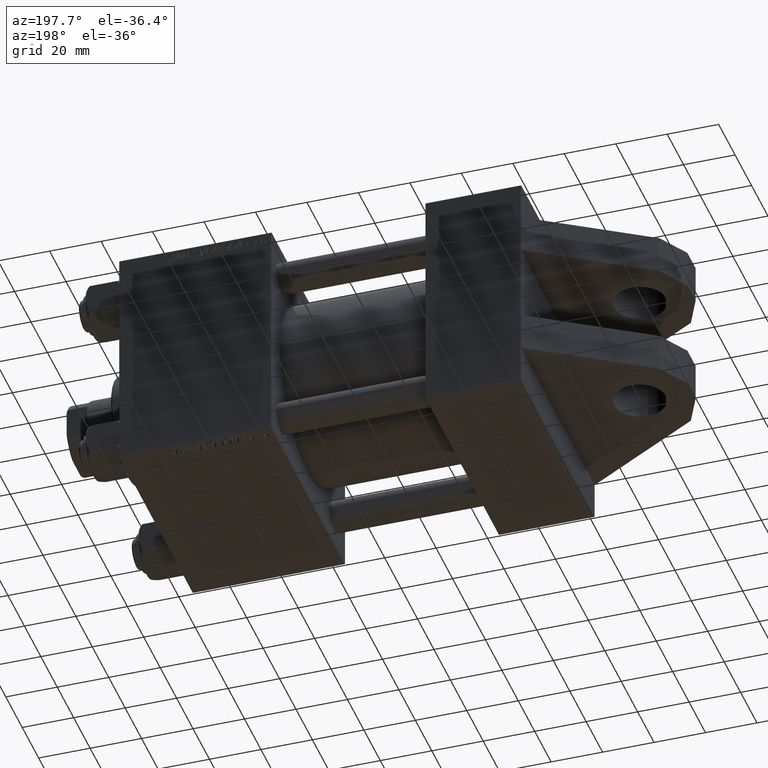
[diagram: clean part render]
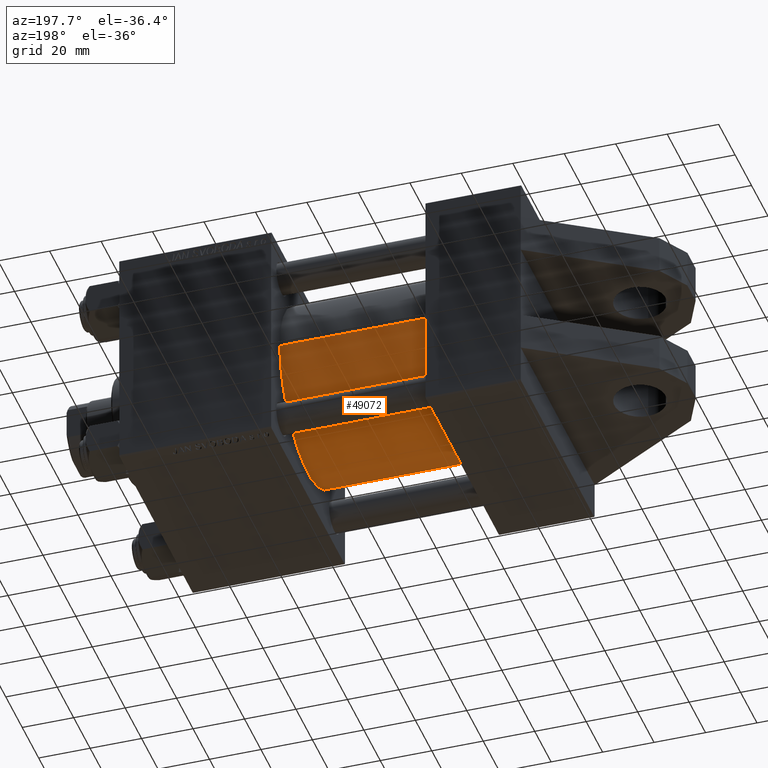
[diagram: same view with one face highlighted and labeled with its STEP entity id]
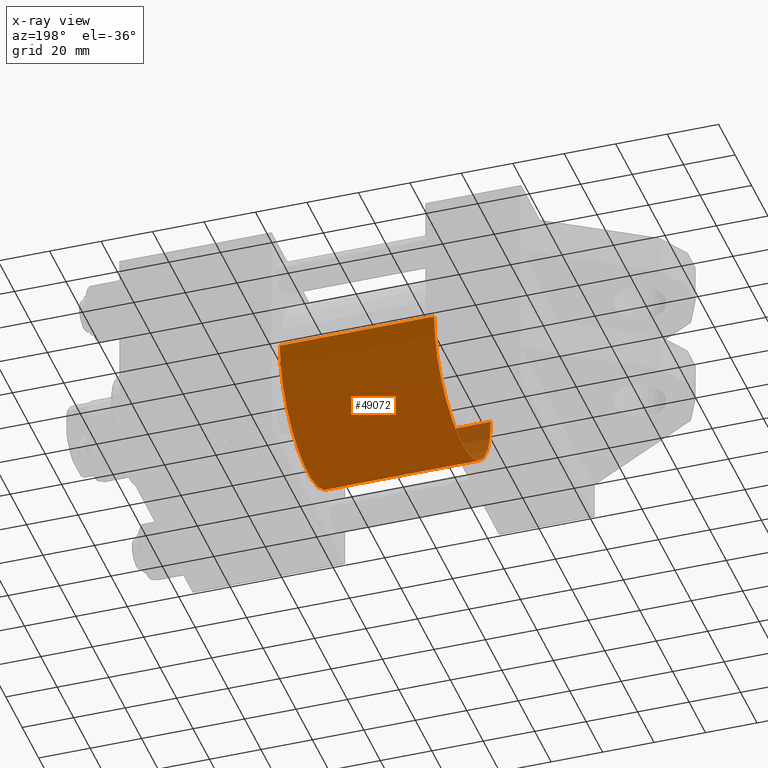
[diagram: x-ray of the same camera — body ghosted, the highlighted face saturated]
A machine part, auxiliary view. The second image highlights one B-rep face of the part: STEP entity #49072.
The next image is the same camera in x-ray: the body ghosted, the highlighted face saturated — about 4% of this face is hidden behind the body in this view.
In plain terms, the highlighted cylindrical surface (partial cylindrical patch) has radius 34.5 mm, axis along (-1, -0, 0).
Its self-contained STEP definition (entity closure, byte-faithful):
#488 = VERTEX_POINT ( 'NONE', #45723 ) ;
#1045 = CYLINDRICAL_SURFACE ( 'NONE', #41011, 34.49999999999999289 ) ;
#1176 = LINE ( 'NONE', #16288, #10778 ) ;
#1295 = ORIENTED_EDGE ( 'NONE', *, *, #28340, .T. ) ;
#3630 = CIRCLE ( 'NONE', #6838, 34.49999999999999289 ) ;
#3997 = VERTEX_POINT ( 'NONE', #9640 ) ;
#4301 = DIRECTION ( 'NONE',  ( -1.000000000000000000, -0.000000000000000000, -0.000000000000000000 ) ) ;
#5065 = DIRECTION ( 'NONE',  ( 0.000000000000000000, 0.000000000000000000, 1.000000000000000000 ) ) ;
#6838 = AXIS2_PLACEMENT_3D ( 'NONE', #22525, #37626, #48717 ) ;
#9640 = CARTESIAN_POINT ( 'NONE',  ( 97.00000000000000000, -3.469446951953614189E-15, 34.49999999999999289 ) ) ;
#10778 = VECTOR ( 'NONE', #11754, 1000.000000000000000 ) ;
#11299 = CIRCLE ( 'NONE', #19345, 34.49999999999999289 ) ;
#11754 = DIRECTION ( 'NONE',  ( -1.000000000000000000, -0.000000000000000000, -0.000000000000000000 ) ) ;
#11794 = CARTESIAN_POINT ( 'NONE',  ( 97.00000000000000000, -3.469446951953614189E-15, 0.000000000000000000 ) ) ;
#11869 = CARTESIAN_POINT ( 'NONE',  ( 97.00000000000000000, -3.469446951953614189E-15, 0.000000000000000000 ) ) ;
#11894 = EDGE_CURVE ( 'NONE', #3997, #488, #47290, .T. ) ;
#13129 = EDGE_CURVE ( 'NONE', #44137, #3997, #11299, .T. ) ;
#16288 = CARTESIAN_POINT ( 'NONE',  ( 97.00000000000000000, 7.555845051047534515E-16, -34.49999999999999289 ) ) ;
#17713 = ORIENTED_EDGE ( 'NONE', *, *, #13129, .F. ) ;
#19345 = AXIS2_PLACEMENT_3D ( 'NONE', #11794, #19347, #42224 ) ;
#19347 = DIRECTION ( 'NONE',  ( 1.000000000000000000, 0.000000000000000000, 0.000000000000000000 ) ) ;
#20087 = CARTESIAN_POINT ( 'NONE',  ( 97.00000000000000000, 7.555845051047534515E-16, -34.49999999999999289 ) ) ;
#22525 = CARTESIAN_POINT ( 'NONE',  ( 37.00000000000000000, -3.469446951953614189E-15, 0.000000000000000000 ) ) ;
#26234 = EDGE_CURVE ( 'NONE', #44137, #27679, #1176, .T. ) ;
#27464 = DIRECTION ( 'NONE',  ( -1.000000000000000000, -0.000000000000000000, -0.000000000000000000 ) ) ;
#27679 = VERTEX_POINT ( 'NONE', #35589 ) ;
#28340 = EDGE_CURVE ( 'NONE', #27679, #488, #3630, .T. ) ;
#35500 = FACE_OUTER_BOUND ( 'NONE', #43972, .T. ) ;
#35589 = CARTESIAN_POINT ( 'NONE',  ( 37.00000000000000000, 7.555845051047534515E-16, -34.49999999999999289 ) ) ;
#35742 = ORIENTED_EDGE ( 'NONE', *, *, #11894, .F. ) ;
#37626 = DIRECTION ( 'NONE',  ( 1.000000000000000000, -0.000000000000000000, 0.000000000000000000 ) ) ;
#38543 = VECTOR ( 'NONE', #4301, 1000.000000000000000 ) ;
#40824 = ORIENTED_EDGE ( 'NONE', *, *, #26234, .T. ) ;
#41011 = AXIS2_PLACEMENT_3D ( 'NONE', #11869, #27464, #5065 ) ;
#42224 = DIRECTION ( 'NONE',  ( 0.000000000000000000, 0.000000000000000000, -1.000000000000000000 ) ) ;
#42524 = CARTESIAN_POINT ( 'NONE',  ( 97.00000000000000000, -3.469446951953614189E-15, 34.49999999999999289 ) ) ;
#43972 = EDGE_LOOP ( 'NONE', ( #17713, #40824, #1295, #35742 ) ) ;
#44137 = VERTEX_POINT ( 'NONE', #20087 ) ;
#45723 = CARTESIAN_POINT ( 'NONE',  ( 37.00000000000000000, -3.469446951953614189E-15, 34.49999999999999289 ) ) ;
#47290 = LINE ( 'NONE', #42524, #38543 ) ;
#48717 = DIRECTION ( 'NONE',  ( 0.000000000000000000, 0.000000000000000000, 1.000000000000000000 ) ) ;
#49072 = ADVANCED_FACE ( 'NONE', ( #35500 ), #1045, .T. ) ;